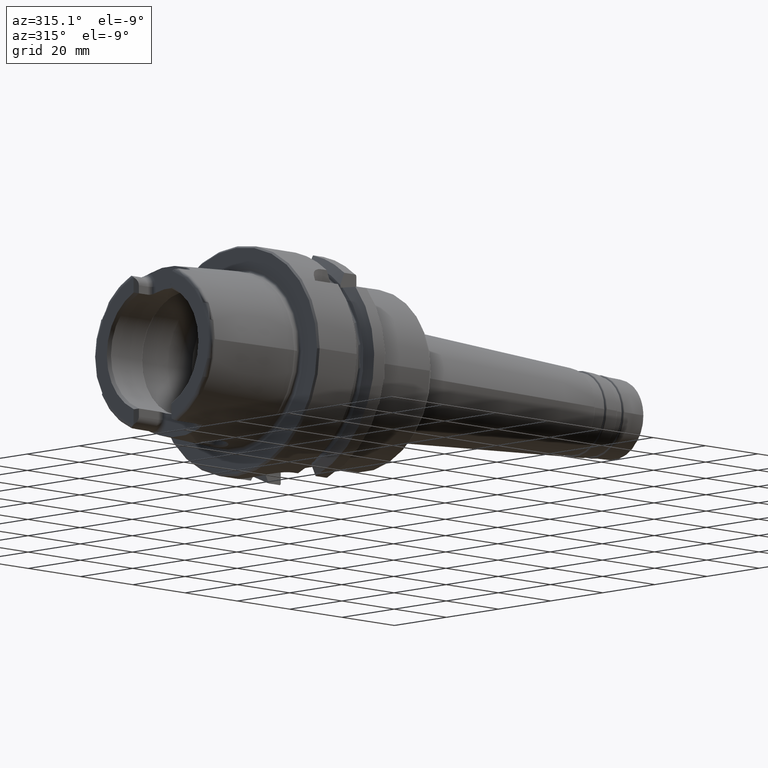
[diagram: clean part render]
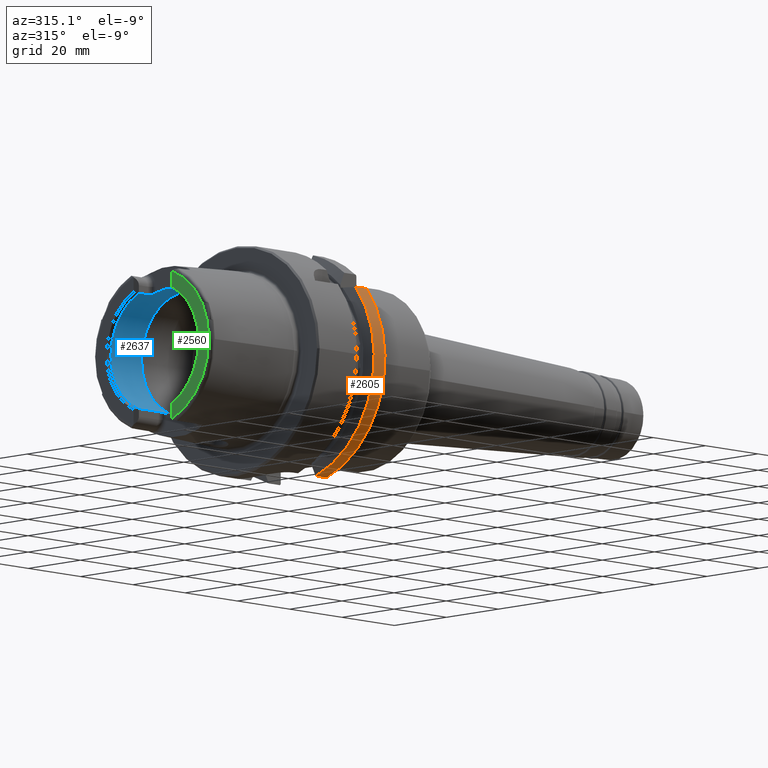
[diagram: same view with three faces highlighted in distinct colors, each labeled with its STEP entity id]
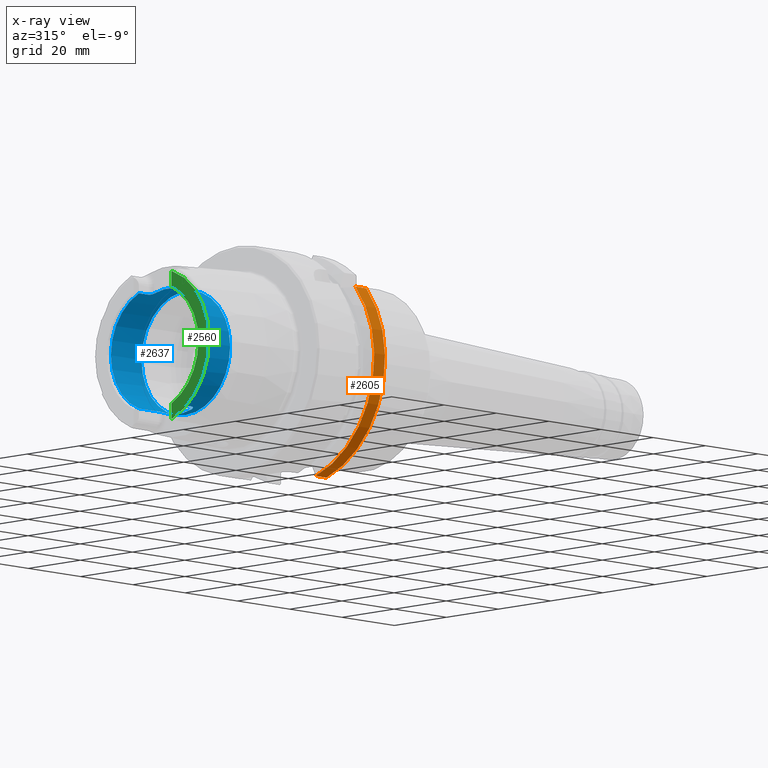
[diagram: x-ray of the same camera — body ghosted, the three highlighted faces saturated]
A machine part, auxiliary view with three faces highlighted in distinct colors.
The next image is the same camera in x-ray (body ghosted, the three faces saturated) — at least one of them is partly hidden behind the body in this view.
Their STEP definitions:

[orange] entity #2605 — the highlighted cylindrical surface (partial cylindrical patch) has radius 31.5 mm, axis along (1, 0, 0).
#286=FACE_OUTER_BOUND('',#428,.T.);
#428=EDGE_LOOP('',(#2189,#2190,#2191,#2192));
#540=LINE('',#4893,#657);
#566=LINE('',#5102,#683);
#657=VECTOR('',#3490,10.);
#683=VECTOR('',#3576,10.);
#877=CIRCLE('',#2920,31.5);
#879=CIRCLE('',#2924,31.5);
#1118=VERTEX_POINT('',#4888);
#1119=VERTEX_POINT('',#4892);
#1160=VERTEX_POINT('',#5090);
#1161=VERTEX_POINT('',#5101);
#1460=EDGE_CURVE('',#1119,#1118,#540,.T.);
#1517=EDGE_CURVE('',#1161,#1160,#566,.T.);
#1543=EDGE_CURVE('',#1119,#1160,#877,.T.);
#1547=EDGE_CURVE('',#1118,#1161,#879,.T.);
#2189=ORIENTED_EDGE('',*,*,#1460,.T.);
#2190=ORIENTED_EDGE('',*,*,#1547,.T.);
#2191=ORIENTED_EDGE('',*,*,#1517,.T.);
#2192=ORIENTED_EDGE('',*,*,#1543,.F.);
#2509=CYLINDRICAL_SURFACE('',#2923,31.5);
#2605=ADVANCED_FACE('',(#286),#2509,.T.);
#2920=AXIS2_PLACEMENT_3D('',#5214,#3612,#3613);
#2923=AXIS2_PLACEMENT_3D('',#5235,#3618,#3619);
#2924=AXIS2_PLACEMENT_3D('',#5236,#3620,#3621);
#3490=DIRECTION('',(-1.,0.,0.));
#3576=DIRECTION('',(1.,0.,0.));
#3612=DIRECTION('center_axis',(1.,0.,0.));
#3613=DIRECTION('ref_axis',(0.,0.,-1.));
#3618=DIRECTION('center_axis',(1.,0.,0.));
#3619=DIRECTION('ref_axis',(0.,-0.956344671622108,-0.292241114595468));
#3620=DIRECTION('center_axis',(1.,0.,0.));
#3621=DIRECTION('ref_axis',(0.,0.,-1.));
#4888=CARTESIAN_POINT('',(21.3774990747593,-24.3361870472759,20.));
#4892=CARTESIAN_POINT('',(25.5,-24.3361870472759,20.));
#4893=CARTESIAN_POINT('',(23.4387495373797,-24.3361870472759,20.));
#5090=CARTESIAN_POINT('',(25.5,-9.,-30.1869176962472));
#5101=CARTESIAN_POINT('',(21.3774990747593,-9.,-30.1869176962472));
#5102=CARTESIAN_POINT('',(23.4387495373797,-9.,-30.1869176962472));
#5214=CARTESIAN_POINT('Origin',(25.5,0.,0.));
#5235=CARTESIAN_POINT('Origin',(23.4387495373797,0.,0.));
#5236=CARTESIAN_POINT('Origin',(21.3774990747593,0.,0.));

[blue] entity #2637 — the highlighted cylindrical surface (bore or boss wall) has radius 17 mm, axis along (-1, 0, 0).
#84=B_SPLINE_CURVE_WITH_KNOTS('',3,(#5338,#5339,#5340,#5341,#5342,#5343,
#5344,#5345,#5346,#5347),.UNSPECIFIED.,.F.,.F.,(4,2,2,2,4),(0.229569660485746,
0.289239803007022,0.348909945528297,0.405407845050218,0.46190574457214),
 .UNSPECIFIED.);
#85=B_SPLINE_CURVE_WITH_KNOTS('',3,(#5356,#5357,#5358,#5359,#5360,#5361,
#5362,#5363,#5364,#5365),.UNSPECIFIED.,.F.,.F.,(4,2,2,2,4),(0.46190574457214,
0.519239917776744,0.576574090981348,0.635410522815223,0.694246954649097),
 .UNSPECIFIED.);
#86=B_SPLINE_CURVE_WITH_KNOTS('',3,(#5378,#5379,#5380,#5381,#5382,#5383,
#5384,#5385,#5386,#5387),.UNSPECIFIED.,.F.,.F.,(4,2,2,2,4),(0.461905744572139,
0.518403644094061,0.574901543615982,0.634571686137257,0.694241828658533),
 .UNSPECIFIED.);
#87=B_SPLINE_CURVE_WITH_KNOTS('',3,(#5407,#5408,#5409,#5410,#5411,#5412,
#5413,#5414,#5415,#5416),.UNSPECIFIED.,.F.,.F.,(4,2,2,2,4),(0.229569660485747,
0.289239803007022,0.348909945528297,0.405407845050218,0.46190574457214),
 .UNSPECIFIED.);
#318=FACE_OUTER_BOUND('',#460,.T.);
#460=EDGE_LOOP('',(#2344,#2345,#2346,#2347,#2348,#2349,#2350,#2351,#2352,
#2353,#2354,#2355,#2356,#2357,#2358,#2359,#2360,#2361));
#519=LINE('',#4181,#636);
#524=LINE('',#4231,#641);
#528=LINE('',#4295,#645);
#592=LINE('',#5403,#709);
#596=LINE('',#5453,#713);
#636=VECTOR('',#3373,10.);
#641=VECTOR('',#3392,10.);
#645=VECTOR('',#3414,10.);
#709=VECTOR('',#3708,10.);
#713=VECTOR('',#3754,17.);
#823=CIRCLE('',#2819,17.);
#824=CIRCLE('',#2820,17.);
#893=CIRCLE('',#2957,17.);
#898=CIRCLE('',#2969,17.);
#900=CIRCLE('',#2976,17.);
#902=CIRCLE('',#2979,17.);
#903=CIRCLE('',#2980,17.);
#904=CIRCLE('',#2981,17.);
#1043=VERTEX_POINT('',#4148);
#1045=VERTEX_POINT('',#4154);
#1046=VERTEX_POINT('',#4156);
#1052=VERTEX_POINT('',#4171);
#1055=VERTEX_POINT('',#4179);
#1063=VERTEX_POINT('',#4229);
#1069=VERTEX_POINT('',#4262);
#1074=VERTEX_POINT('',#4294);
#1191=VERTEX_POINT('',#5336);
#1193=VERTEX_POINT('',#5355);
#1197=VERTEX_POINT('',#5376);
#1198=VERTEX_POINT('',#5377);
#1200=VERTEX_POINT('',#5397);
#1202=VERTEX_POINT('',#5448);
#1203=VERTEX_POINT('',#5449);
#1204=VERTEX_POINT('',#5451);
#1365=EDGE_CURVE('',#1045,#1046,#823,.T.);
#1366=EDGE_CURVE('',#1046,#1043,#824,.T.);
#1377=EDGE_CURVE('',#1052,#1055,#519,.T.);
#1388=EDGE_CURVE('',#1045,#1063,#524,.T.);
#1401=EDGE_CURVE('',#1074,#1069,#528,.T.);
#1571=EDGE_CURVE('',#1191,#1063,#84,.T.);
#1575=EDGE_CURVE('',#1074,#1193,#85,.T.);
#1581=EDGE_CURVE('',#1197,#1198,#86,.T.);
#1587=EDGE_CURVE('',#1200,#1198,#893,.T.);
#1590=EDGE_CURVE('',#1197,#1043,#592,.T.);
#1593=EDGE_CURVE('',#1200,#1055,#87,.T.);
#1597=EDGE_CURVE('',#1191,#1193,#898,.T.);
#1601=EDGE_CURVE('',#1052,#1069,#900,.T.);
#1603=EDGE_CURVE('',#1202,#1203,#902,.T.);
#1604=EDGE_CURVE('',#1204,#1202,#903,.T.);
#1605=EDGE_CURVE('',#1204,#1046,#596,.T.);
#1606=EDGE_CURVE('',#1203,#1204,#904,.T.);
#2344=ORIENTED_EDGE('',*,*,#1603,.F.);
#2345=ORIENTED_EDGE('',*,*,#1604,.F.);
#2346=ORIENTED_EDGE('',*,*,#1605,.T.);
#2347=ORIENTED_EDGE('',*,*,#1365,.F.);
#2348=ORIENTED_EDGE('',*,*,#1388,.T.);
#2349=ORIENTED_EDGE('',*,*,#1571,.F.);
#2350=ORIENTED_EDGE('',*,*,#1597,.T.);
#2351=ORIENTED_EDGE('',*,*,#1575,.F.);
#2352=ORIENTED_EDGE('',*,*,#1401,.T.);
#2353=ORIENTED_EDGE('',*,*,#1601,.F.);
#2354=ORIENTED_EDGE('',*,*,#1377,.T.);
#2355=ORIENTED_EDGE('',*,*,#1593,.F.);
#2356=ORIENTED_EDGE('',*,*,#1587,.T.);
#2357=ORIENTED_EDGE('',*,*,#1581,.F.);
#2358=ORIENTED_EDGE('',*,*,#1590,.T.);
#2359=ORIENTED_EDGE('',*,*,#1366,.F.);
#2360=ORIENTED_EDGE('',*,*,#1605,.F.);
#2361=ORIENTED_EDGE('',*,*,#1606,.F.);
#2519=CYLINDRICAL_SURFACE('',#2978,17.);
#2637=ADVANCED_FACE('',(#318),#2519,.F.);
#2819=AXIS2_PLACEMENT_3D('',#4157,#3348,#3349);
#2820=AXIS2_PLACEMENT_3D('',#4158,#3350,#3351);
#2957=AXIS2_PLACEMENT_3D('',#5398,#3701,#3702);
#2969=AXIS2_PLACEMENT_3D('',#5425,#3729,#3730);
#2976=AXIS2_PLACEMENT_3D('',#5445,#3744,#3745);
#2978=AXIS2_PLACEMENT_3D('',#5447,#3748,#3749);
#2979=AXIS2_PLACEMENT_3D('',#5450,#3750,#3751);
#2980=AXIS2_PLACEMENT_3D('',#5452,#3752,#3753);
#2981=AXIS2_PLACEMENT_3D('',#5454,#3755,#3756);
#3348=DIRECTION('center_axis',(1.,0.,0.));
#3349=DIRECTION('ref_axis',(0.,-1.,0.));
#3350=DIRECTION('center_axis',(1.,0.,0.));
#3351=DIRECTION('ref_axis',(0.,-1.,0.));
#3373=DIRECTION('',(1.,0.,0.));
#3392=DIRECTION('',(1.,0.,0.));
#3414=DIRECTION('',(-1.,0.,0.));
#3701=DIRECTION('center_axis',(-1.,0.,0.));
#3702=DIRECTION('ref_axis',(0.,1.,0.));
#3708=DIRECTION('',(-1.,0.,0.));
#3729=DIRECTION('center_axis',(-1.,0.,0.));
#3730=DIRECTION('ref_axis',(0.,1.,0.));
#3744=DIRECTION('center_axis',(1.,0.,0.));
#3745=DIRECTION('ref_axis',(0.,-1.,0.));
#3748=DIRECTION('center_axis',(-1.,0.,0.));
#3749=DIRECTION('ref_axis',(0.,1.,0.));
#3750=DIRECTION('center_axis',(-1.,0.,0.));
#3751=DIRECTION('ref_axis',(0.,0.,1.));
#3752=DIRECTION('center_axis',(-1.,0.,0.));
#3753=DIRECTION('ref_axis',(0.,0.,1.));
#3754=DIRECTION('',(-1.,0.,0.));
#3755=DIRECTION('center_axis',(-1.,0.,0.));
#3756=DIRECTION('ref_axis',(0.,0.,1.));
#4148=CARTESIAN_POINT('',(-31.,-6.27,-15.8014904360317));
#4154=CARTESIAN_POINT('',(-31.,-6.27,15.8014904360317));
#4156=CARTESIAN_POINT('',(-31.,-17.,2.0818995585505E-15));
#4157=CARTESIAN_POINT('Origin',(-31.,0.,0.));
#4158=CARTESIAN_POINT('Origin',(-31.,0.,0.));
#4171=CARTESIAN_POINT('',(-31.,6.27,-15.8014904360317));
#4179=CARTESIAN_POINT('',(-23.5,6.27,-15.8014904360317));
#4181=CARTESIAN_POINT('',(-25.6423502691896,6.27,-15.8014904360317));
#4229=CARTESIAN_POINT('',(-27.5,-6.27,15.8014904360317));
#4231=CARTESIAN_POINT('',(-25.6423502691896,-6.27,15.8014904360317));
#4262=CARTESIAN_POINT('',(-31.,6.27,15.8014904360317));
#4294=CARTESIAN_POINT('',(-27.5,6.27,15.8014904360317));
#4295=CARTESIAN_POINT('',(-25.6423502691896,6.27,15.8014904360317));
#5336=CARTESIAN_POINT('',(-26.,-4.77,16.3170800083839));
#5338=CARTESIAN_POINT('Ctrl Pts',(-26.,-4.77,16.3170800083839));
#5339=CARTESIAN_POINT('Ctrl Pts',(-26.,-4.96091029208457,16.2612708750845));
#5340=CARTESIAN_POINT('Ctrl Pts',(-26.0385404635846,-5.16378617408596,16.1979610859593));
#5341=CARTESIAN_POINT('Ctrl Pts',(-26.1950909803916,-5.53690543536203,16.0742436586733));
#5342=CARTESIAN_POINT('Ctrl Pts',(-26.3130861154278,-5.70721093092864,16.01400454532));
#5343=CARTESIAN_POINT('Ctrl Pts',(-26.5811791540138,-5.96960590306613,15.9179857910505));
#5344=CARTESIAN_POINT('Ctrl Pts',(-26.7467155703026,-6.082078486584,15.8749745356799));
#5345=CARTESIAN_POINT('Ctrl Pts',(-27.1119229195206,-6.23232125085234,15.8165946761251));
#5346=CARTESIAN_POINT('Ctrl Pts',(-27.3116736682603,-6.27,15.8014904360317));
#5347=CARTESIAN_POINT('Ctrl Pts',(-27.5,-6.27,15.8014904360317));
#5355=CARTESIAN_POINT('',(-26.,4.77,16.3170800083839));
#5356=CARTESIAN_POINT('Ctrl Pts',(-27.5,6.27,15.8014904360317));
#5357=CARTESIAN_POINT('Ctrl Pts',(-27.308886089318,6.27,15.8014904360317));
#5358=CARTESIAN_POINT('Ctrl Pts',(-27.1064099842243,6.23121026569193,15.8170435837256));
#5359=CARTESIAN_POINT('Ctrl Pts',(-26.7371019784685,6.07691823919465,15.8769617281184));
#5360=CARTESIAN_POINT('Ctrl Pts',(-26.5701870418163,5.96150738537594,15.9210500039306));
#5361=CARTESIAN_POINT('Ctrl Pts',(-26.3050641818979,5.69638452545756,16.017853695422));
#5362=CARTESIAN_POINT('Ctrl Pts',(-26.1900212186221,5.52750941197086,16.0774506535614));
#5363=CARTESIAN_POINT('Ctrl Pts',(-26.0374824299787,5.15846789211413,16.1996292802954));
#5364=CARTESIAN_POINT('Ctrl Pts',(-26.,4.95824289522375,16.2620506397863));
#5365=CARTESIAN_POINT('Ctrl Pts',(-26.,4.77,16.3170800083839));
#5376=CARTESIAN_POINT('',(-23.5,-6.27,-15.8014904360317));
#5377=CARTESIAN_POINT('',(-22.,-4.77,-16.3170800083839));
#5378=CARTESIAN_POINT('Ctrl Pts',(-23.5,-6.27,-15.8014904360317));
#5379=CARTESIAN_POINT('Ctrl Pts',(-23.3116736682603,-6.27,-15.8014904360317));
#5380=CARTESIAN_POINT('Ctrl Pts',(-23.1119229195206,-6.23232125085234,-15.8165946761251));
#5381=CARTESIAN_POINT('Ctrl Pts',(-22.7467155703026,-6.082078486584,-15.8749745356799));
#5382=CARTESIAN_POINT('Ctrl Pts',(-22.5811791540138,-5.96960590306613,-15.9179857910505));
#5383=CARTESIAN_POINT('Ctrl Pts',(-22.3130861154278,-5.70721093092864,-16.01400454532));
#5384=CARTESIAN_POINT('Ctrl Pts',(-22.1950909803916,-5.53690543536204,-16.0742436586733));
#5385=CARTESIAN_POINT('Ctrl Pts',(-22.0385404635846,-5.16378617408596,-16.1979610859593));
#5386=CARTESIAN_POINT('Ctrl Pts',(-22.,-4.96091029208457,-16.2612708750845));
#5387=CARTESIAN_POINT('Ctrl Pts',(-22.,-4.77,-16.3170800083839));
#5397=CARTESIAN_POINT('',(-22.,4.77,-16.3170800083839));
#5398=CARTESIAN_POINT('Origin',(-22.,0.,0.));
#5403=CARTESIAN_POINT('',(-25.6423502691896,-6.27,-15.8014904360317));
#5407=CARTESIAN_POINT('Ctrl Pts',(-22.,4.77,-16.3170800083839));
#5408=CARTESIAN_POINT('Ctrl Pts',(-22.,4.96091029208457,-16.2612708750845));
#5409=CARTESIAN_POINT('Ctrl Pts',(-22.0385404635846,5.16378617408596,-16.1979610859593));
#5410=CARTESIAN_POINT('Ctrl Pts',(-22.1950909803916,5.53690543536204,-16.0742436586733));
#5411=CARTESIAN_POINT('Ctrl Pts',(-22.3130861154278,5.70721093092864,-16.01400454532));
#5412=CARTESIAN_POINT('Ctrl Pts',(-22.5811791540138,5.96960590306613,-15.9179857910505));
#5413=CARTESIAN_POINT('Ctrl Pts',(-22.7467155703026,6.082078486584,-15.8749745356799));
#5414=CARTESIAN_POINT('Ctrl Pts',(-23.1119229195206,6.23232125085234,-15.8165946761251));
#5415=CARTESIAN_POINT('Ctrl Pts',(-23.3116736682603,6.27,-15.8014904360317));
#5416=CARTESIAN_POINT('Ctrl Pts',(-23.5,6.27,-15.8014904360317));
#5425=CARTESIAN_POINT('Origin',(-26.,0.,0.));
#5445=CARTESIAN_POINT('Origin',(-31.,0.,0.));
#5447=CARTESIAN_POINT('Origin',(-25.6423502691896,0.,0.));
#5448=CARTESIAN_POINT('',(-19.2847005383793,17.,0.));
#5449=CARTESIAN_POINT('',(-19.2847005383793,-2.0818995585505E-15,-17.));
#5450=CARTESIAN_POINT('Origin',(-19.2847005383793,0.,0.));
#5451=CARTESIAN_POINT('',(-19.2847005383793,-17.,2.0818995585505E-15));
#5452=CARTESIAN_POINT('Origin',(-19.2847005383793,0.,0.));
#5453=CARTESIAN_POINT('',(-25.6423502691896,-17.,2.0818995585505E-15));
#5454=CARTESIAN_POINT('Origin',(-19.2847005383793,0.,0.));

[green] entity #2560 — the highlighted planar face has unit normal (-1, 0, 0).
#113=PLANE('',#2821);
#241=FACE_OUTER_BOUND('',#380,.T.);
#380=EDGE_LOOP('',(#1899,#1900,#1901,#1902,#1903,#1904));
#512=LINE('',#4147,#629);
#514=LINE('',#4166,#631);
#629=VECTOR('',#3338,10.);
#631=VECTOR('',#3360,10.);
#822=CIRCLE('',#2817,17.5773502691896);
#825=CIRCLE('',#2822,2.88);
#826=CIRCLE('',#2823,21.5760400159857);
#827=CIRCLE('',#2824,2.88);
#1041=VERTEX_POINT('',#4144);
#1042=VERTEX_POINT('',#4146);
#1044=VERTEX_POINT('',#4152);
#1047=VERTEX_POINT('',#4160);
#1048=VERTEX_POINT('',#4162);
#1049=VERTEX_POINT('',#4164);
#1360=EDGE_CURVE('',#1041,#1042,#512,.T.);
#1363=EDGE_CURVE('',#1042,#1044,#822,.T.);
#1367=EDGE_CURVE('',#1041,#1047,#825,.T.);
#1368=EDGE_CURVE('',#1048,#1047,#826,.T.);
#1369=EDGE_CURVE('',#1048,#1049,#827,.T.);
#1370=EDGE_CURVE('',#1044,#1049,#514,.T.);
#1899=ORIENTED_EDGE('',*,*,#1360,.F.);
#1900=ORIENTED_EDGE('',*,*,#1367,.T.);
#1901=ORIENTED_EDGE('',*,*,#1368,.F.);
#1902=ORIENTED_EDGE('',*,*,#1369,.T.);
#1903=ORIENTED_EDGE('',*,*,#1370,.F.);
#1904=ORIENTED_EDGE('',*,*,#1363,.F.);
#2560=ADVANCED_FACE('',(#241),#113,.T.);
#2817=AXIS2_PLACEMENT_3D('',#4153,#3344,#3345);
#2821=AXIS2_PLACEMENT_3D('',#4159,#3352,#3353);
#2822=AXIS2_PLACEMENT_3D('',#4161,#3354,#3355);
#2823=AXIS2_PLACEMENT_3D('',#4163,#3356,#3357);
#2824=AXIS2_PLACEMENT_3D('',#4165,#3358,#3359);
#3338=DIRECTION('',(0.,0.,1.));
#3344=DIRECTION('center_axis',(-1.,0.,0.));
#3345=DIRECTION('ref_axis',(0.,-1.,0.));
#3352=DIRECTION('center_axis',(-1.,0.,0.));
#3353=DIRECTION('ref_axis',(0.,0.,1.));
#3354=DIRECTION('center_axis',(-1.,0.,0.));
#3355=DIRECTION('ref_axis',(0.,-1.,0.));
#3356=DIRECTION('center_axis',(1.,0.,0.));
#3357=DIRECTION('ref_axis',(0.,0.,-1.));
#3358=DIRECTION('center_axis',(-1.,0.,0.));
#3359=DIRECTION('ref_axis',(0.,0.453346760926795,-0.891334232685576));
#3360=DIRECTION('',(0.,1.58830189502884E-16,1.));
#4144=CARTESIAN_POINT('',(-32.,-7.27,-20.1717424229271));
#4146=CARTESIAN_POINT('',(-32.,-7.27,-16.003447831195));
#4147=CARTESIAN_POINT('',(-32.,-7.27,-8.995));
#4152=CARTESIAN_POINT('',(-32.,-7.26999999999999,16.003447831195));
#4153=CARTESIAN_POINT('Origin',(-32.,0.,0.));
#4159=CARTESIAN_POINT('Origin',(-32.,21.5760400159857,0.));
#4160=CARTESIAN_POINT('',(-32.,-7.39118810947246,-20.2705658801576));
#4161=CARTESIAN_POINT('Origin',(-32.,-9.15,-17.99));
#4162=CARTESIAN_POINT('',(-32.,-7.39118810947246,20.2705658801576));
#4163=CARTESIAN_POINT('Origin',(-32.,0.,0.));
#4164=CARTESIAN_POINT('',(-32.,-7.26999999999999,20.1717424229271));
#4165=CARTESIAN_POINT('Origin',(-32.,-9.15,17.99));
#4166=CARTESIAN_POINT('',(-32.,-7.27,5.5));